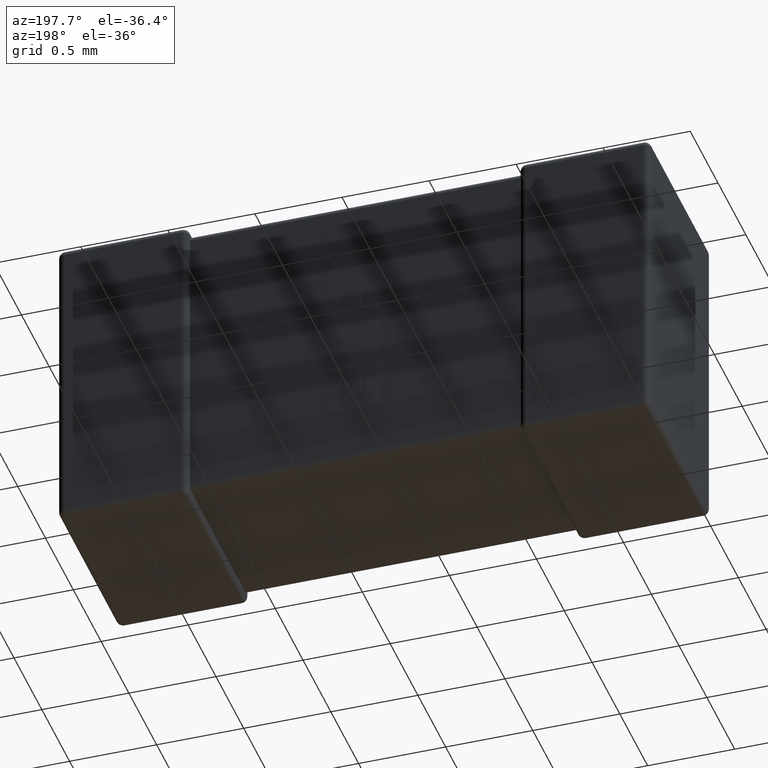
[diagram: clean part render]
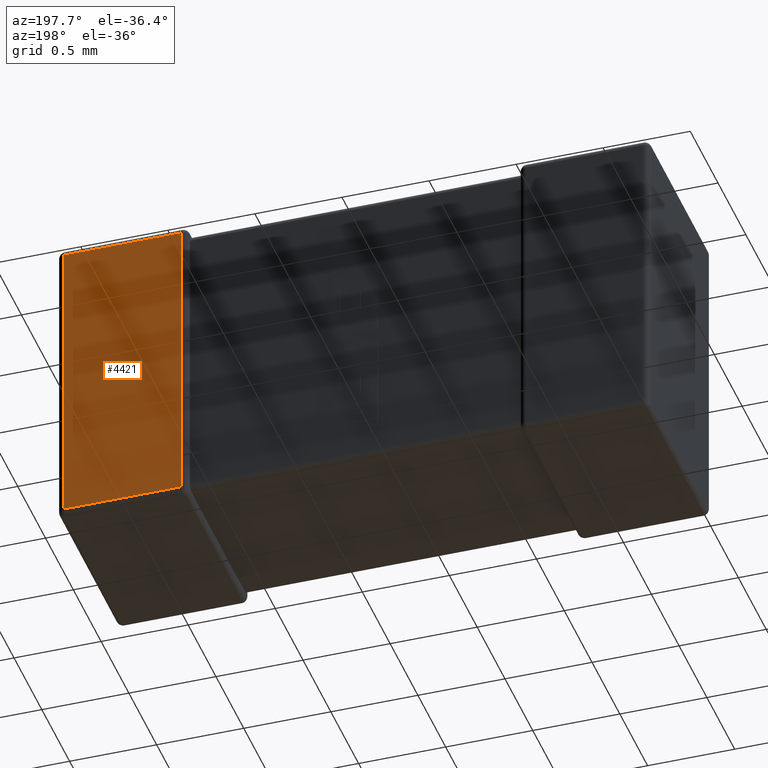
[diagram: same view with one face highlighted and labeled with its STEP entity id]
A machine part, auxiliary view. The second image highlights one B-rep face of the part: STEP entity #4421.
In plain terms, the highlighted planar face has unit normal (0, -1, 0).
Its self-contained STEP definition (entity closure, byte-faithful):
#8 = ORIENTED_EDGE ( 'NONE', *, *, #3150, .T. ) ;
#68 = FACE_OUTER_BOUND ( 'NONE', #1247, .T. ) ;
#164 = ORIENTED_EDGE ( 'NONE', *, *, #3570, .T. ) ;
#233 = CARTESIAN_POINT ( 'NONE',  ( 3.362560000000000215, 1.100000000000000089, -0.03744000000000000106 ) ) ;
#240 = VECTOR ( 'NONE', #561, 1000.000000000000000 ) ;
#559 = VERTEX_POINT ( 'NONE', #2079 ) ;
#561 = DIRECTION ( 'NONE',  ( -0.000000000000000000, 0.000000000000000000, 1.000000000000000000 ) ) ;
#585 = VERTEX_POINT ( 'NONE', #233 ) ;
#597 = VERTEX_POINT ( 'NONE', #4300 ) ;
#737 = CARTESIAN_POINT ( 'NONE',  ( 3.400000000000000355, 1.100000000000000089, -0.03744000000000000106 ) ) ;
#776 = CARTESIAN_POINT ( 'NONE',  ( 3.400000000000000355, 1.100000000000000089, 0.000000000000000000 ) ) ;
#1034 = LINE ( 'NONE', #2084, #1452 ) ;
#1247 = EDGE_LOOP ( 'NONE', ( #8, #164, #1619, #3497 ) ) ;
#1452 = VECTOR ( 'NONE', #2426, 1000.000000000000000 ) ;
#1490 = DIRECTION ( 'NONE',  ( 0.000000000000000000, -0.000000000000000000, -1.000000000000000000 ) ) ;
#1619 = ORIENTED_EDGE ( 'NONE', *, *, #4292, .T. ) ;
#2079 = CARTESIAN_POINT ( 'NONE',  ( 3.362560000000000215, 1.100000000000000089, -1.762560000000000127 ) ) ;
#2084 = CARTESIAN_POINT ( 'NONE',  ( 3.400000000000000355, 1.100000000000000089, -1.762560000000000127 ) ) ;
#2140 = DIRECTION ( 'NONE',  ( 0.000000000000000000, -1.000000000000000000, 0.000000000000000000 ) ) ;
#2339 = VECTOR ( 'NONE', #3448, 1000.000000000000000 ) ;
#2426 = DIRECTION ( 'NONE',  ( -1.000000000000000000, 0.000000000000000000, 0.000000000000000000 ) ) ;
#2500 = LINE ( 'NONE', #737, #3435 ) ;
#3093 = CARTESIAN_POINT ( 'NONE',  ( 2.687440000000000495, 1.100000000000000089, 0.000000000000000000 ) ) ;
#3150 = EDGE_CURVE ( 'NONE', #597, #585, #2500, .T. ) ;
#3207 = DIRECTION ( 'NONE',  ( 1.000000000000000000, -0.000000000000000000, -0.000000000000000000 ) ) ;
#3380 = LINE ( 'NONE', #4103, #2339 ) ;
#3435 = VECTOR ( 'NONE', #3207, 1000.000000000000000 ) ;
#3448 = DIRECTION ( 'NONE',  ( -0.000000000000000000, -0.000000000000000000, -1.000000000000000000 ) ) ;
#3497 = ORIENTED_EDGE ( 'NONE', *, *, #4551, .T. ) ;
#3570 = EDGE_CURVE ( 'NONE', #585, #559, #3380, .T. ) ;
#3608 = PLANE ( 'NONE',  #4239 ) ;
#4064 = CARTESIAN_POINT ( 'NONE',  ( 2.687440000000000495, 1.100000000000000089, -1.762560000000000127 ) ) ;
#4103 = CARTESIAN_POINT ( 'NONE',  ( 3.362560000000000215, 1.100000000000000089, 0.000000000000000000 ) ) ;
#4160 = VERTEX_POINT ( 'NONE', #4064 ) ;
#4239 = AXIS2_PLACEMENT_3D ( 'NONE', #776, #2140, #1490 ) ;
#4292 = EDGE_CURVE ( 'NONE', #559, #4160, #1034, .T. ) ;
#4300 = CARTESIAN_POINT ( 'NONE',  ( 2.687440000000000495, 1.100000000000000089, -0.03744000000000000106 ) ) ;
#4421 = ADVANCED_FACE ( 'NONE', ( #68 ), #3608, .F. ) ;
#4551 = EDGE_CURVE ( 'NONE', #4160, #597, #4598, .T. ) ;
#4598 = LINE ( 'NONE', #3093, #240 ) ;